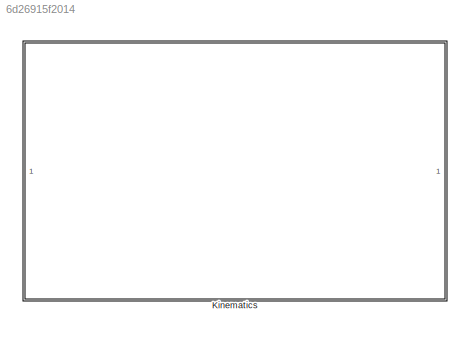
MODEL slx_6d26915f2014
KIND model
CONFIG AbsTol = auto
CONFIG EnableMultiTasking = off
CONFIG FixedStep = auto
CONFIG MaxStep = auto
CONFIG MinStep = auto
CONFIG RelTol = 1e-3
CONFIG SampleTimeConstraint = Unconstrained
CONFIG SolverName = VariableStepAuto
CONFIG StartTime = 0.0
CONFIG StopTime = 10.0
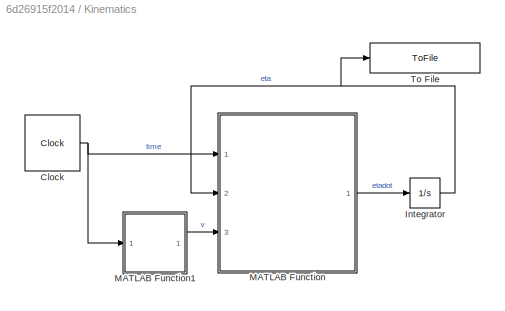
BLOCK [SubSystem] Kinematics
  Ports = []
  RequestExecContextInheritance = off
BLOCK [Clock] Kinematics/Clock
  DisplayTime = on
BLOCK [Integrator] Kinematics/Integrator
  InitialCondition = S0
  Ports = [1, 1]
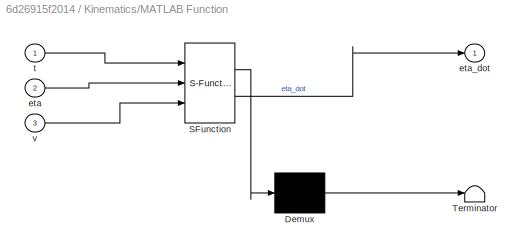
BLOCK [SubSystem] Kinematics/MATLAB Function
  ErrorFcn = Stateflow.Translate.translate
  PermitHierarchicalResolution = ExplicitOnly
  Ports = [3, 1]
  RequestExecContextInheritance = off
  SFBlockType = MATLAB Function
  TreatAsAtomicUnit = on
BLOCK [Demux] Kinematics/MATLAB Function/ Demux 
  Outputs = 1
  Ports = [1, 1]
BLOCK [S-Function] Kinematics/MATLAB Function/ SFunction 
  EnableBusSupport = on
  FunctionName = sf_sfun
  PortCounts = [3 2]
  Ports = [3, 2]
  SFcnIsStateOwnerBlock = off
  SFunctionDeploymentMode = off
  Tag = Stateflow S-Function 2
BLOCK [Terminator] Kinematics/MATLAB Function/ Terminator 
BLOCK [Inport] Kinematics/MATLAB Function/eta
  Port = 2
BLOCK [Outport] Kinematics/MATLAB Function/eta_dot
BLOCK [Inport] Kinematics/MATLAB Function/t
BLOCK [Inport] Kinematics/MATLAB Function/v
  Port = 3
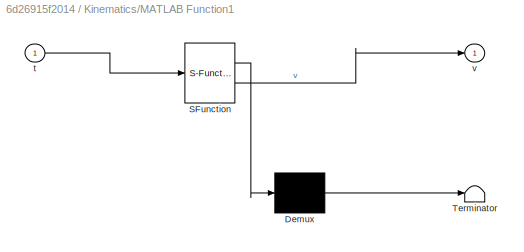
BLOCK [SubSystem] Kinematics/MATLAB Function1
  ErrorFcn = Stateflow.Translate.translate
  PermitHierarchicalResolution = ExplicitOnly
  Ports = [1, 1]
  RequestExecContextInheritance = off
  SFBlockType = MATLAB Function
  TreatAsAtomicUnit = on
BLOCK [Demux] Kinematics/MATLAB Function1/ Demux 
  Outputs = 1
  Ports = [1, 1]
BLOCK [S-Function] Kinematics/MATLAB Function1/ SFunction 
  EnableBusSupport = on
  FunctionName = sf_sfun
  PortCounts = [1 2]
  Ports = [1, 2]
  SFcnIsStateOwnerBlock = off
  SFunctionDeploymentMode = off
  Tag = Stateflow S-Function 1
BLOCK [Terminator] Kinematics/MATLAB Function1/ Terminator 
BLOCK [Inport] Kinematics/MATLAB Function1/t
BLOCK [Outport] Kinematics/MATLAB Function1/v
BLOCK [ToFile] Kinematics/To File
  Filename = data_from_SL_model.mat
  MatrixName = eta
  Ports = [1]
NET Kinematics/Clock:1 -> Kinematics/MATLAB Function1:1, Kinematics/MATLAB Function:1
NET Kinematics/Integrator:1 -> Kinematics/MATLAB Function:2, Kinematics/To File:1
LINE Kinematics/MATLAB Function1:1 -> Kinematics/MATLAB Function:3
LINE Kinematics/MATLAB Function:1 -> Kinematics/Integrator:1
note: NET lines group one-source signal fan-out (src -> all destinations, sorted); 1:1 wires keep LINE
CHART Kinematics/MATLAB Function states=1 transitions=1
  STATE_LABEL 'eML_blk_kernel()'
  STATE_LABEL 'SCRIPT:\nfunction eta_dot = V_P (t,eta,v)\n\nphi = eta(4);\ntheta = eta(5);\npsi = eta(6);\n\neta_dot = zeros(6,1);\n\nCpsi = [cos(psi) -sin(psi) 0\n        sin(psi)  cos(psi) 0\n        0          0       1];\n\nCtheta = [cos(theta)   0   sin(theta)\n           0           1      0   \n         -sin(theta)   0   cos(theta)];\n\nCphi = [1    0         0\n        0 cos(phi) -sin(phi)\n        0 sin(phi) cos(phi)];\n\nJ...<+229ch>'
CHART Kinematics/MATLAB Function1 states=1 transitions=1
  STATE_LABEL 'eML_blk_kernel()'
  STATE_LABEL 'SCRIPT:\nfunction v = f_v(t)\nv = [0.5\n     0\n     0\n     2*pi/10\n     0\n     0];\nend'
CHART  states=0 transitions=0
CHART  states=0 transitions=0
